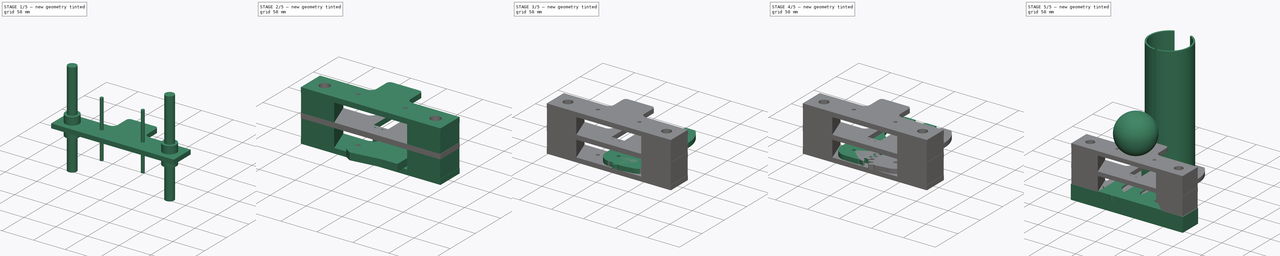
[diagram: build sequence overview — one tinted view per stage of 5, left to right]
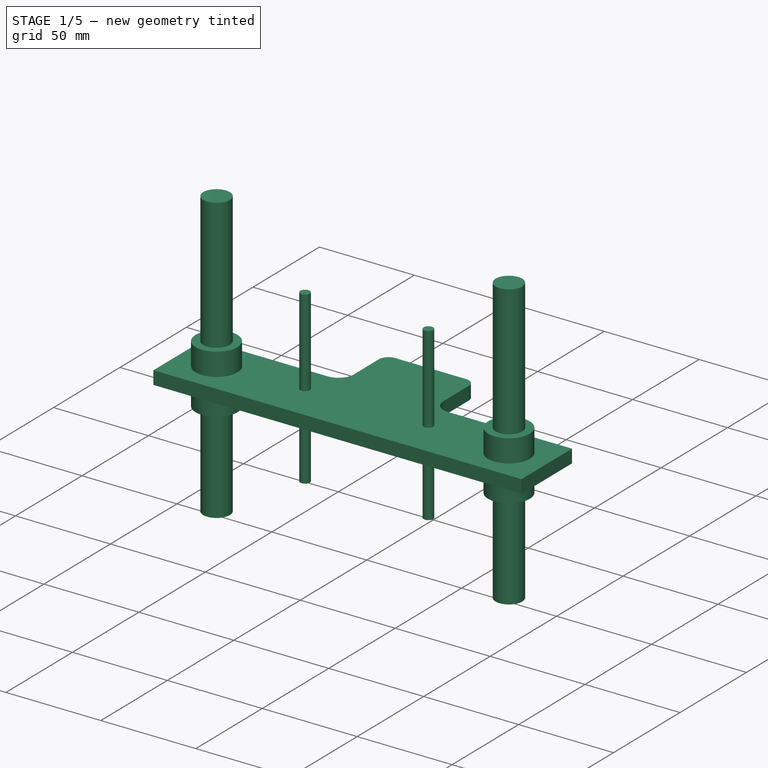
[diagram: stage 1 of 5 — iso view after this stage's code; geometry added in this stage tinted green]
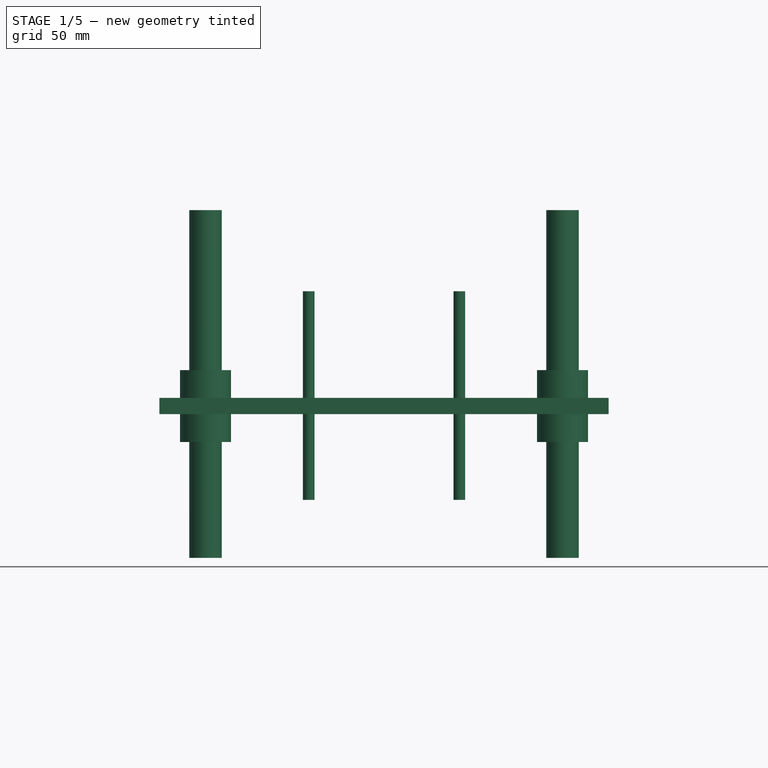
[diagram: stage 1 of 5 — front view after this stage's code; geometry added in this stage tinted green]
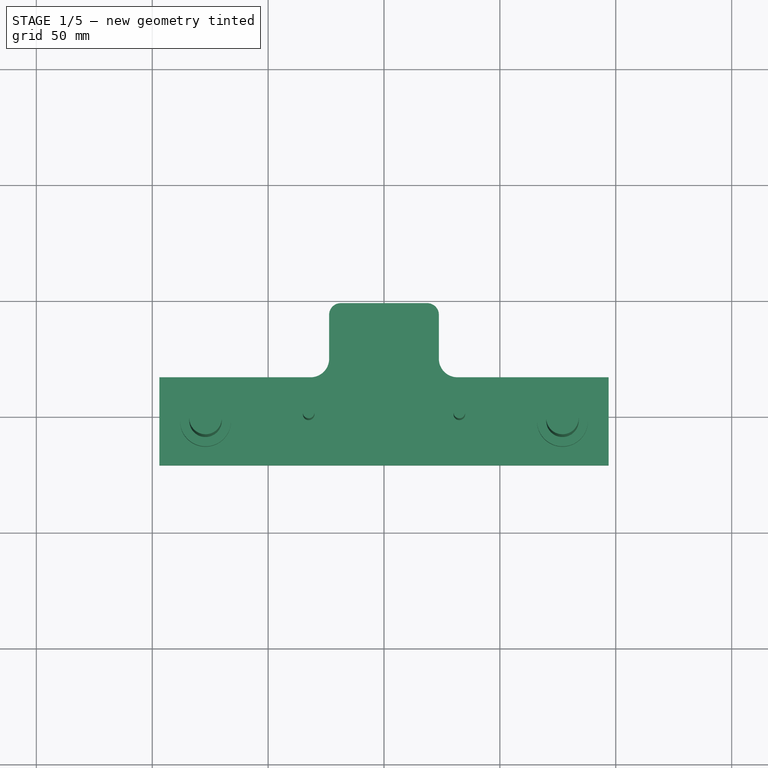
[diagram: stage 1 of 5 — top view after this stage's code; geometry added in this stage tinted green]
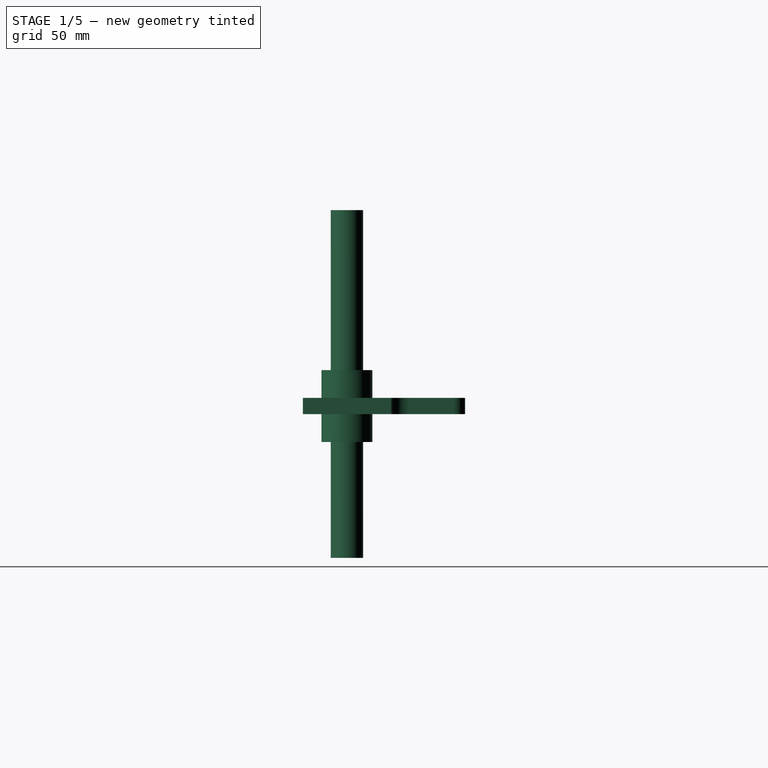
[diagram: stage 1 of 5 — right view after this stage's code; geometry added in this stage tinted green]
FCSTD DOCUMENT  (FreeCAD 0.15R4669 (Git))
Label: gear15_72mm
License: All rights reserved
LicenseURL: http://en.wikipedia.org/wiki/All_rights_reserved
objects: Part::FeaturePython×15, Part::Cut×12, Sketcher::SketchObject×11, PartDesign::Pad×10, Part::Feature×10, App::DocumentObjectGroup×9, Part::Cylinder×6, Part::MultiFuse×6, Part::Mirroring×4, Part::Revolution×2, Part::Part2DObjectPython×1, Part::Compound×1, Part::Sphere×1
note: 89 computed .brp shape members not serialized (recipe doc carries the construction recipe); baked Part::Feature solids carry a one-line shape summary decoded from their .brp

FEATURE [Part::Feature] Pad008  label="servo001"
  Placement = pos=(0,18,26) rot=(0,1,0;3.14159rad)
  shape: bbox 20 x 56 x 40 mm, 20 faces (baked)
FEATURE [Part::Feature] Pad009  label="servo002"
  Placement = pos=(0,18,26) rot=(0.707107,0.707107,0;3.14159rad)
  shape: bbox 20 x 56 x 40 mm, 20 faces (baked)
FEATURE [Sketcher::SketchObject] Sketch  label="base_servo"
  Placement = pos=(0,0,25) rot=(0,0,1;0rad)
  sketch-geometry (14):
    g0: LineSegment StartX=96.9367 StartY=16 StartZ=0 EndX=96.9367 EndY=-22 EndZ=0
    g1: LineSegment StartX=96.9367 StartY=-22 StartZ=0 EndX=-96.9367 EndY=-22 EndZ=0
    g2: LineSegment StartX=-96.9367 StartY=-22 StartZ=0 EndX=-96.9367 EndY=16 EndZ=0
    g3: LineSegment StartX=-18.6686 StartY=47.9833 StartZ=0 EndX=18.6686 EndY=47.9833 EndZ=0
    g4: LineSegment StartX=23.6686 StartY=42.9833 StartZ=0 EndX=23.6686 EndY=24 EndZ=0
    g5: LineSegment StartX=31.6686 StartY=16 StartZ=0 EndX=96.9367 EndY=16 EndZ=0
    g6: LineSegment StartX=-96.9367 StartY=16 StartZ=0 EndX=-31.6686 EndY=16 EndZ=0
    g7: LineSegment StartX=-23.6686 StartY=24 StartZ=0 EndX=-23.6686 EndY=42.9833 EndZ=0
    g8: ArcOfCircle CenterX=-18.6686 CenterY=42.9833 CenterZ=0 NormalX=0 NormalY=0 NormalZ=1 Radius=5 StartAngle=1.5708 EndAngle=3.14159
    g9: ArcOfCircle CenterX=-31.6686 CenterY=24 CenterZ=0 NormalX=0 NormalY=0 NormalZ=1 Radius=8 StartAngle=4.71239 EndAngle=6.28319
    g10: ArcOfCircle CenterX=18.6686 CenterY=42.9833 CenterZ=0 NormalX=0 NormalY=0 NormalZ=1 Radius=5 StartAngle=0 EndAngle=1.5708
    g11: ArcOfCircle CenterX=31.6686 CenterY=24 CenterZ=0 NormalX=0 NormalY=0 NormalZ=1 Radius=8 StartAngle=3.14159 EndAngle=4.71239
    g12: GeomPoint [constr] X=-62.178 Y=16 Z=0
    g13: GeomPoint [constr] X=58.6541 Y=16 Z=0
  constraints (28):
    c: Coincident(g0,g1)
    c: Coincident(g1,g2)
    c: Horizontal(g1)
    c: Vertical(g0)
    c: Vertical(g2)
    c: Symmetric(g0,g2,g-2)
    c: Coincident(g5,g0)
    c: Coincident(g2,g6)
    c: Vertical(g7)
    c: Horizontal(g6)
    c: DistanceY(g2,g1) = -38
    c: Tangent(g3,g8) = 1.5708
    c: Tangent(g7,g8) = 1.5708
    c: Tangent(g7,g9) = -1.5708
    c: Tangent(g6,g9) = -1.5708
    c: Tangent(g3,g10) = 1.5708
    c: Tangent(g4,g10) = 1.5708
    c: Tangent(g4,g11) = -1.5708
    c: Tangent(g5,g11) = -1.5708
    c: Radius(g8) = 5
    c: Symmetric(g3,g3,g-2)
    c: Symmetric(g6,g5,g-2)
    c: DistanceY(g-1,g2) = 16
    c: Equal(g8,g10)
    c: Radius(g9) = 8
    c: Equal(g9,g11)
    c: PointOnObject(g12,g6)
    c: PointOnObject(g13,g5)
FEATURE [Part::Feature] Cut005001  label="pince_g_servo open"
  Placement = pos=(-1.95999,11.1157,0) rot=(0,0,1;0.349066rad)
  shape: bbox 83.6 x 137 x 7 mm, 56 faces (baked)
FEATURE [Part::Feature] Cut006001  label="pince_d_servo open"
  Placement = pos=(0.710203,6.75713,0) rot=(0,0,-1;0.20944rad)
  shape: bbox 70.94 x 139.9 x 7 mm, 58 faces (baked)
FEATURE [PartDesign::Pad] Pad010  label="base_servo001"
  Length = 7
  Length2 = 100
  Placement = pos=(0,0,25) rot=(0,0,1;0rad)
  Sketch = -> Sketch
  Type = 0
FEATURE [Part::Feature] Cut006003  label="pince_g_servo top"
  Placement = pos=(0,0,64) rot=(0,0,1;0rad)
  shape: bbox 55.07 x 140.6 x 7 mm, 56 faces (baked)
FEATURE [Part::Feature] Cut006004  label="pince_d_servo top"
  Placement = pos=(0,0,64) rot=(0,0,1;0rad)
  shape: bbox 54.83 x 144.6 x 7 mm, 58 faces (baked)
FEATURE [Part::Cylinder] Cylinder003  label="ball_slider"
  Angle = 360
  Height = 31
  Radius = 11
FEATURE [Part::Cylinder] Cylinder004  label="axe"
  Angle = 360
  Height = 150
  Placement = pos=(0,0,-50) rot=(0,0,1;0rad)
  Radius = 7
FEATURE [Part::MultiFuse] Fusion003  label="ball slider"
  Shapes = -> [Cylinder003,Cylinder004]
FEATURE [App::DocumentObjectGroup] Groupe007  label="glissiere"
  Group = -> [Fusion003]
FEATURE [Part::FeaturePython] Clone017  label="Clone of ball slider"  # Draft clone (typed FeaturePython)
  Objects = -> [Fusion003]
  Placement = pos=(-77,-3,13) rot=(0,0,1;0rad)
  Scale = (1,1,1)
FEATURE [Part::Mirroring] Part__Mirroring002  label="Clone of ball slider (Mirror #3)"
  Base = (0,0,0)
  Normal = (1,0,0)
  Source = -> Clone017
FEATURE [Part::MultiFuse] Fusion004  label="ball_sliders"
  Shapes = -> [Clone017,Part__Mirroring002]
FEATURE [Part::Cylinder] Cylinder005  label="vis_d"
  Angle = 360
  Height = 90
  Placement = pos=(32.5,0,-12) rot=(0,0,1;0rad)
  Radius = 2.5
FEATURE [Part::Mirroring] Part__Mirroring003  label="vis_d (Mirror #4)"
  Base = (0,0,0)
  Normal = (1,0,0)
  Source = -> Cylinder005
FEATURE [Part::MultiFuse] Fusion005  label="vis"
  Shapes = -> [Part__Mirroring003,Cylinder005]
FEATURE [Part::MultiFuse] Fusion006  label="vis sliders"
  Shapes = -> [Fusion004,Fusion005]
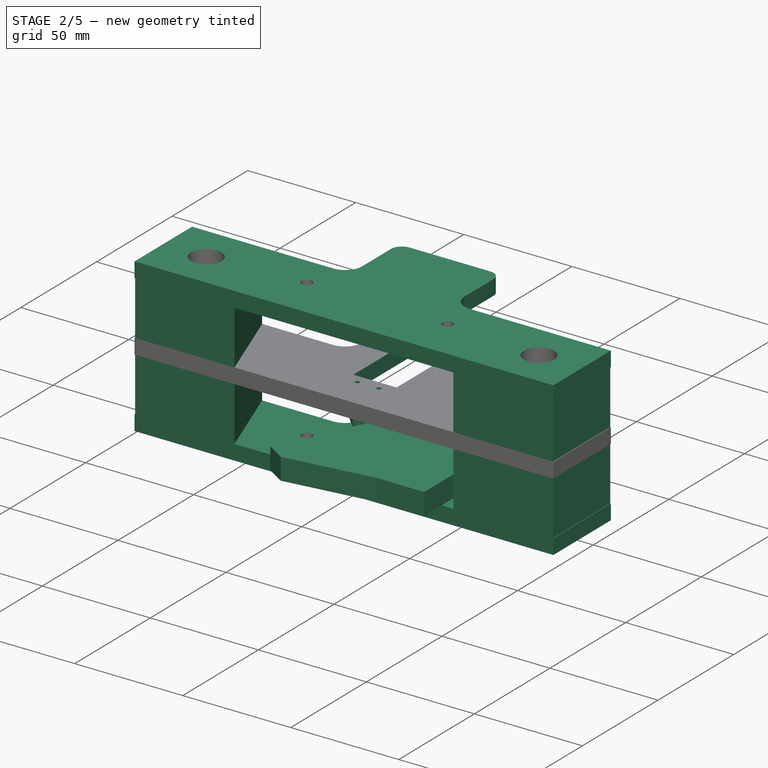
[diagram: stage 2 of 5 — iso view after this stage's code; geometry added in this stage tinted green]
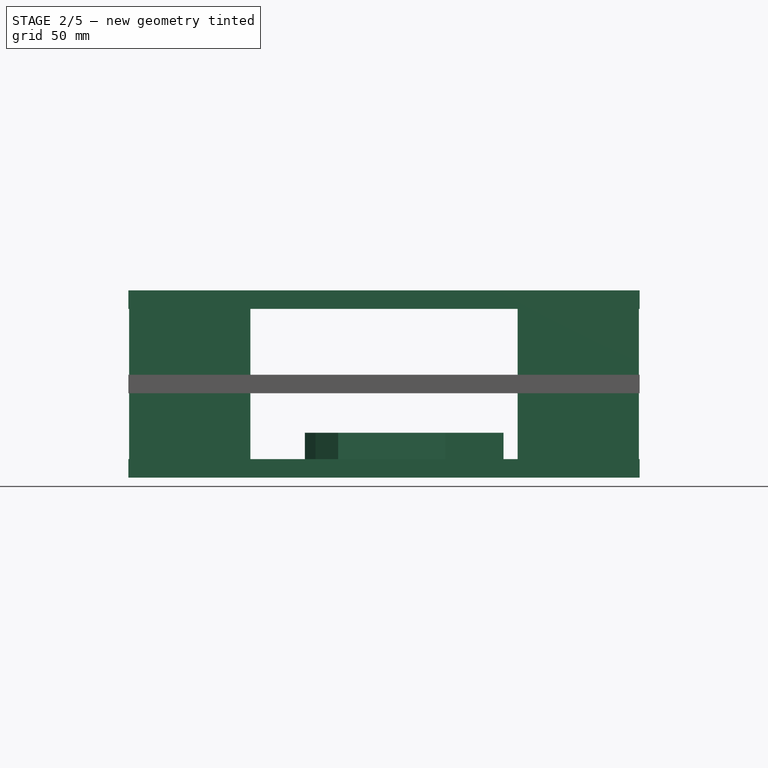
[diagram: stage 2 of 5 — front view after this stage's code; geometry added in this stage tinted green]
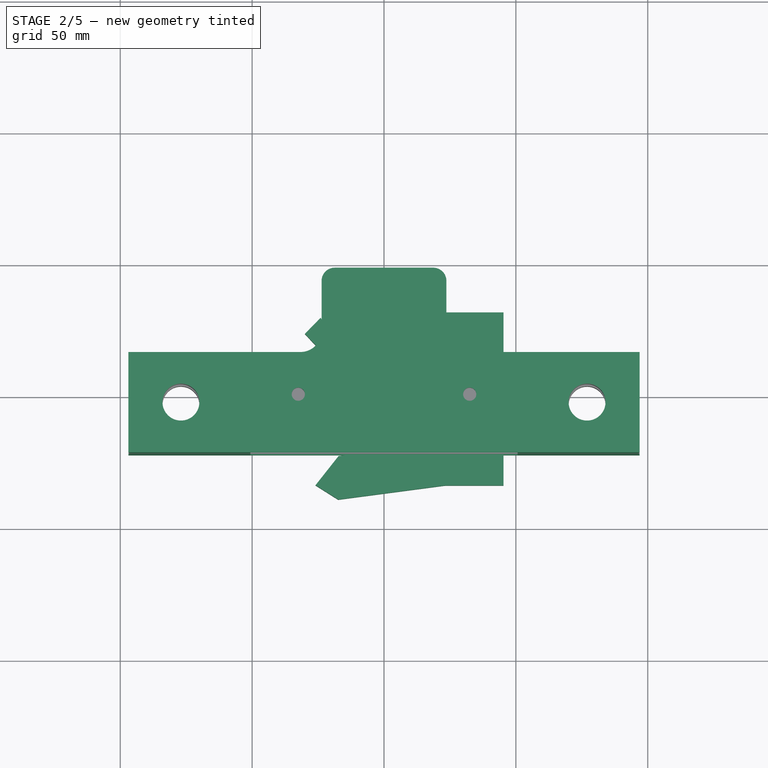
[diagram: stage 2 of 5 — top view after this stage's code; geometry added in this stage tinted green]
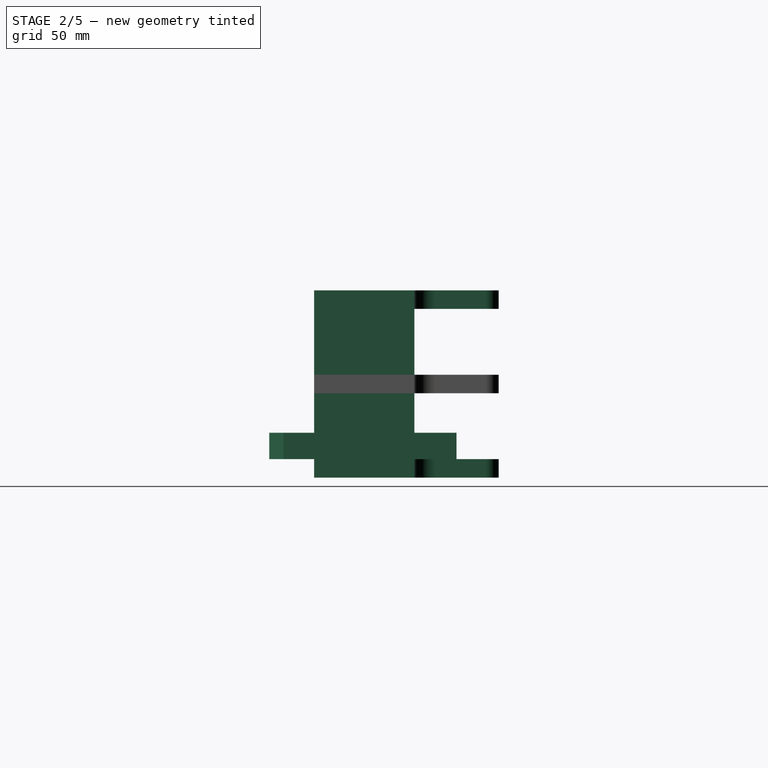
[diagram: stage 2 of 5 — right view after this stage's code; geometry added in this stage tinted green]
FEATURE [Part::Feature] Revolve001  label="plot001"
  Placement = pos=(0,80,-30) rot=(0,0,1;0rad)
  shape: bbox 60 x 60 x 70 mm, 5 faces, 0 solids (baked)
FEATURE [App::DocumentObjectGroup] Groupe003
  Group = -> [Revolve,Sphere]
FEATURE [Part::Feature] Sphere001  label="tennis001"
  Placement = pos=(0,80,180) rot=(0,0,1;0rad)
  shape: bbox 65 x 65 x 65 mm, 1 faces (baked)
FEATURE [Sketcher::SketchObject] Sketch006  label="4plot"
  Placement = pos=(0,0,0) rot=(1,0,0;1.5708rad)
  sketch-geometry (18):
    g0: LineSegment StartX=0 StartY=0 StartZ=0 EndX=30 EndY=0 EndZ=0
    g1: LineSegment StartX=30 StartY=280 StartZ=0 EndX=17.5 EndY=280 EndZ=0
    g2: LineSegment StartX=17.5 StartY=280 StartZ=0 EndX=17.5 EndY=272 EndZ=0
    g3: LineSegment StartX=17.5 StartY=272 StartZ=0 EndX=0 EndY=265.057 EndZ=0
    g4: LineSegment StartX=0 StartY=265.057 StartZ=0 EndX=0 EndY=0 EndZ=0
    g5: LineSegment StartX=30 StartY=0 StartZ=0 EndX=30 EndY=69 EndZ=0
    g6: LineSegment StartX=30 StartY=69 StartZ=0 EndX=10 EndY=69 EndZ=0
    g7: LineSegment StartX=10 StartY=69 StartZ=0 EndX=10 EndY=70 EndZ=0
    g8: LineSegment StartX=10 StartY=70 StartZ=0 EndX=30 EndY=70 EndZ=0
    g9: LineSegment StartX=30 StartY=70 StartZ=0 EndX=30 EndY=139 EndZ=0
    g10: LineSegment StartX=30 StartY=139 StartZ=0 EndX=7.41971 EndY=139 EndZ=0
    g11: LineSegment StartX=7.41971 StartY=139 StartZ=0 EndX=7.41971 EndY=140 EndZ=0
    g12: LineSegment StartX=7.41971 StartY=140 StartZ=0 EndX=30 EndY=140 EndZ=0
    g13: LineSegment StartX=30 StartY=140 StartZ=0 EndX=30 EndY=209 EndZ=0
    g14: LineSegment StartX=30 StartY=209 StartZ=0 EndX=20.1134 EndY=209 EndZ=0
    g15: LineSegment StartX=20.1134 StartY=209 StartZ=0 EndX=20.1134 EndY=210 EndZ=0
    g16: LineSegment StartX=20.1134 StartY=210 StartZ=0 EndX=30 EndY=210 EndZ=0
    g17: LineSegment StartX=30 StartY=210 StartZ=0 EndX=30 EndY=280 EndZ=0
  constraints (44):
    c: Coincident(g-1,g0)
    c: Horizontal(g0)
    c: Horizontal(g1)
    c: Coincident(g1,g2)
    c: Vertical(g2)
    c: Coincident(g2,g3)
    c: Coincident(g3,g4)
    c: Coincident(g4,g0)
    c: Vertical(g4)
    c: DistanceY(g2) = -8
    c: DistanceX(g0) = 30
    c: DistanceX(g-1,g1) = 17.5
    c: Coincident(g0,g5)
    c: Vertical(g5)
    c: Coincident(g5,g6)
    c: Horizontal(g6)
    c: Coincident(g6,g7)
    c: Vertical(g7)
    c: Coincident(g7,g8)
    c: Horizontal(g8)
    c: Coincident(g8,g9)
    c: Vertical(g9)
    c: Coincident(g9,g10)
    c: Horizontal(g10)
    c: Coincident(g10,g11)
    c: Vertical(g11)
    c: Coincident(g11,g12)
    c: Horizontal(g12)
    c: Coincident(g12,g13)
    c: Vertical(g13)
    c: Coincident(g13,g14)
    c: Horizontal(g14)
    c: Coincident(g14,g15)
    c: Coincident(g15,g16)
    c: Coincident(g16,g17)
    c: Coincident(g17,g1)
    c: Vertical(g17)
    c: Vertical(g15)
    c: DistanceY(g5) = 69
    c: DistanceX(g6) = -20
    c: Equal(g5,g9)
    c: Equal(g5,g13)
    c: DistanceY(g1,g0) = -280
    c: Horizontal(g16)
FEATURE [Part::Revolution] Revolve002  label="4plot001"
  Angle = 360
  Axis = (0,0,1)
  Base = (0,0,0)
  Solid = false
  Source = -> Sketch006
FEATURE [Part::Feature] Revolve003  label="4plot002"
  Placement = pos=(0,80,-90) rot=(0,0,1;0rad)
  shape: bbox 60 x 60 x 280 mm, 17 faces, 0 solids (baked)
FEATURE [App::DocumentObjectGroup] Groupe002  label="element jeu"
  Group = -> [Revolve001,Groupe003,Sphere001,Revolve002,Revolve003]
FEATURE [Sketcher::SketchObject] Sketch007  label="gears cutter00d"
  sketch-geometry (13):
    g0: LineSegment StartX=20 StartY=31.9589 StartZ=0 EndX=45.3042 EndY=31.9589 EndZ=0
    g1: LineSegment StartX=45.3042 StartY=31.9589 StartZ=0 EndX=45.3042 EndY=-33.6521 EndZ=0
    g2: LineSegment StartX=45.3042 StartY=-33.6521 StartZ=0 EndX=23.2132 EndY=-33.6521 EndZ=0
    g3: LineSegment StartX=-17.3724 StartY=-39.0124 StartZ=0 EndX=23.2132 EndY=-33.6521 EndZ=0
    g4: LineSegment StartX=20 StartY=0 StartZ=0 EndX=20 EndY=31.9589 EndZ=0
    g5: LineSegment StartX=6.5359e-06 StartY=-20 StartZ=0 EndX=-17.2369 EndY=-22.5073 EndZ=0
    g6: ArcOfCircle CenterX=0 CenterY=0 CenterZ=0 NormalX=0 NormalY=0 NormalZ=1 Radius=20 StartAngle=4.71239 EndAngle=6.28319
    g7: LineSegment StartX=-17.2369 StartY=-22.5073 StartZ=0 EndX=-25.9844 EndY=-33.5782 EndZ=0
    g8: LineSegment StartX=-25.9844 StartY=-33.5782 StartZ=0 EndX=-17.3724 EndY=-39.0124 EndZ=0
    g9: LineSegment StartX=-20 StartY=22.1857 StartZ=0 EndX=-22.9786 EndY=16.3812 EndZ=0
    g10: LineSegment StartX=-22.9786 StartY=16.3812 StartZ=0 EndX=-30 EndY=23.8199 EndZ=0
    g11: LineSegment StartX=-30 StartY=23.8199 StartZ=0 EndX=-24.0017 EndY=30 EndZ=0
    g12: LineSegment StartX=-20 StartY=22.1857 StartZ=0 EndX=-24.0017 EndY=30 EndZ=0
  constraints (18):
    c: Coincident(g0,g1)
    c: Coincident(g1,g2)
    c: Horizontal(g0)
    c: Horizontal(g2)
    c: Vertical(g1)
    c: Coincident(g3,g2)
    c: Coincident(g4,g0)
    c: Vertical(g4)
    c: Coincident(g6,g-1)
    c: Coincident(g6,g4)
    c: Coincident(g6,g5)
    c: Coincident(g7,g5)
    c: Coincident(g8,g7)
    c: Coincident(g8,g3)
    c: Coincident(g9,g10)
    c: Coincident(g10,g11)
    c: Coincident(g12,g9)
    c: Coincident(g12,g11)
FEATURE [PartDesign::Pad] Pad005  label="gearcutter_d"
  Length = 10
  Length2 = 100
  Sketch = -> Sketch007
  Type = 0
FEATURE [Part::Feature] Fusion002  label="servo003"
  Placement = pos=(0,18,25) rot=(0.707107,0.707107,0;3.14159rad)
  shape: bbox 20 x 56 x 40 mm, 32 faces, 5 solids (baked)
FEATURE [Part::Cut] Cut006002  label="base_servo002"
  Base = -> Pad010
  Tool = -> Fusion002
FEATURE [Sketcher::SketchObject] Sketch010
  sketch-geometry (8):
    g0: LineSegment StartX=-96.6549 StartY=16 StartZ=0 EndX=-64.4858 EndY=16 EndZ=0
    g1: LineSegment StartX=-64.4858 StartY=16 StartZ=0 EndX=-50.6549 EndY=-22 EndZ=0
    g2: LineSegment StartX=-50.6549 StartY=-22 StartZ=0 EndX=-96.6549 EndY=-22 EndZ=0
    g3: LineSegment StartX=-96.6549 StartY=-22 StartZ=0 EndX=-96.6549 EndY=16 EndZ=0
    g4: LineSegment StartX=64.4858 StartY=16 StartZ=0 EndX=96.6549 EndY=16 EndZ=0
    g5: LineSegment StartX=96.6549 StartY=16 StartZ=0 EndX=96.6549 EndY=-22 EndZ=0
    g6: LineSegment StartX=96.6549 StartY=-22 StartZ=0 EndX=50.6549 EndY=-22 EndZ=0
    g7: LineSegment StartX=50.6549 StartY=-22 StartZ=0 EndX=64.4858 EndY=16 EndZ=0
  constraints (20):
    c: Coincident(g0,g1)
    c: Coincident(g1,g2)
    c: Coincident(g2,g3)
    c: Coincident(g3,g0)
    c: Horizontal(g0)
    c: Horizontal(g2)
    c: Vertical(g3)
    c: DistanceY(g0,g2) = -38
    c: Coincident(g4,g5)
    c: Coincident(g5,g6)
    c: Coincident(g6,g7)
    c: Coincident(g7,g4)
    c: Horizontal(g4)
    c: Horizontal(g6)
    c: Vertical(g5)
    c: Symmetric(g1,g6,g-2)
    c: Symmetric(g0,g4,g-2)
    c: Symmetric(g5,g2,g-2)
    c: DistanceX(g2,g1) = 46
    c: Angle(g1,g2) = 1.22173
FEATURE [PartDesign::Pad] Pad011  label="border"
  Length = 25
  Length2 = 100
  Sketch = -> Sketch010
  Type = 0
FEATURE [Part::FeaturePython] Clone014  label="Clone of border"  # Draft clone (typed FeaturePython)
  Objects = -> [Pad011]
  Placement = pos=(0,0,32) rot=(0,0,1;0rad)
  Scale = (1,1,1)
FEATURE [Part::FeaturePython] Clone015  label="base_servo top"  # Draft clone (typed FeaturePython)
  Objects = -> [Pad010]
  Placement = pos=(0,0,57) rot=(0,0,1;0rad)
  Scale = (1,1,1)
FEATURE [Part::FeaturePython] Clone016  label="base_servo bot"  # Draft clone (typed FeaturePython)
  Objects = -> [Pad010]
  Placement = pos=(0,0,-7) rot=(0,0,1;0rad)
  Scale = (1,1,1)
FEATURE [Part::Cut] Cut006005
  Base = -> Pad011
  Tool = -> Fusion004
FEATURE [Part::Cut] Cut006008
  Base = -> Clone014
  Tool = -> Fusion004
FEATURE [Part::Cut] Cut006006
  Base = -> Clone016
  Tool = -> Fusion006
FEATURE [Part::Cut] Cut006007
  Base = -> Clone015
  Tool = -> Fusion006
FEATURE [Part::Cut] Cut006009
  Base = -> Cut006002
  Tool = -> Fusion006
FEATURE [App::DocumentObjectGroup] Groupe004  label="servo"
  Group = -> [Pad006,Pad007,Clone,Pad008,Cut006009]
FEATURE [App::DocumentObjectGroup] Groupe008  label="axes"
  Group = -> [Fusion006]
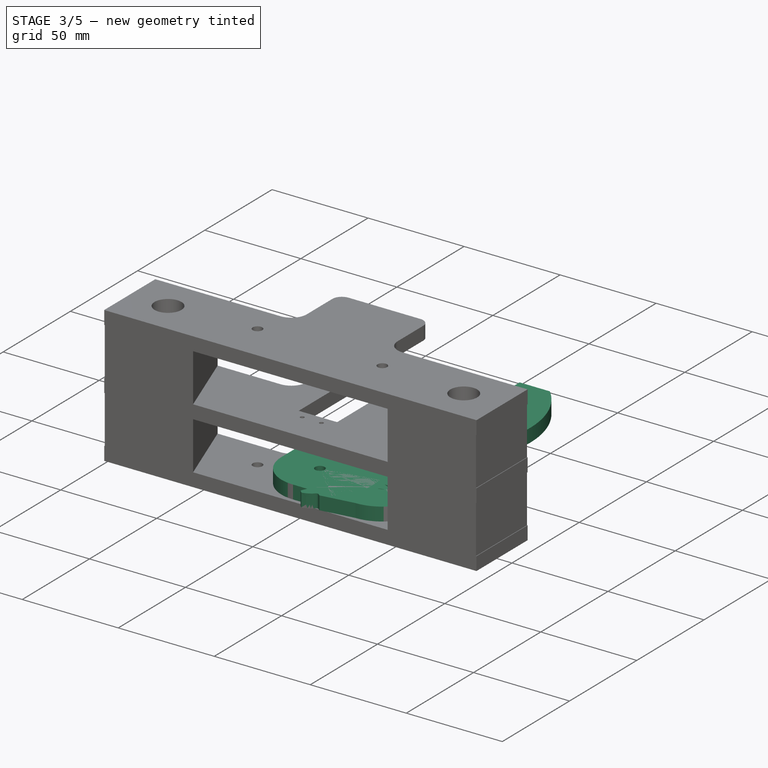
[diagram: stage 3 of 5 — iso view after this stage's code; geometry added in this stage tinted green]
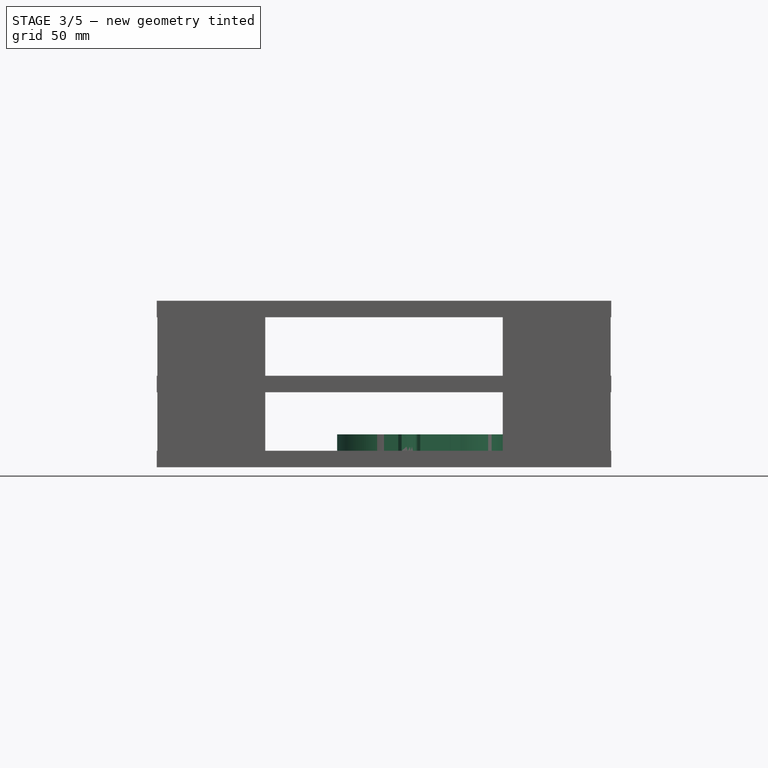
[diagram: stage 3 of 5 — front view after this stage's code; geometry added in this stage tinted green]
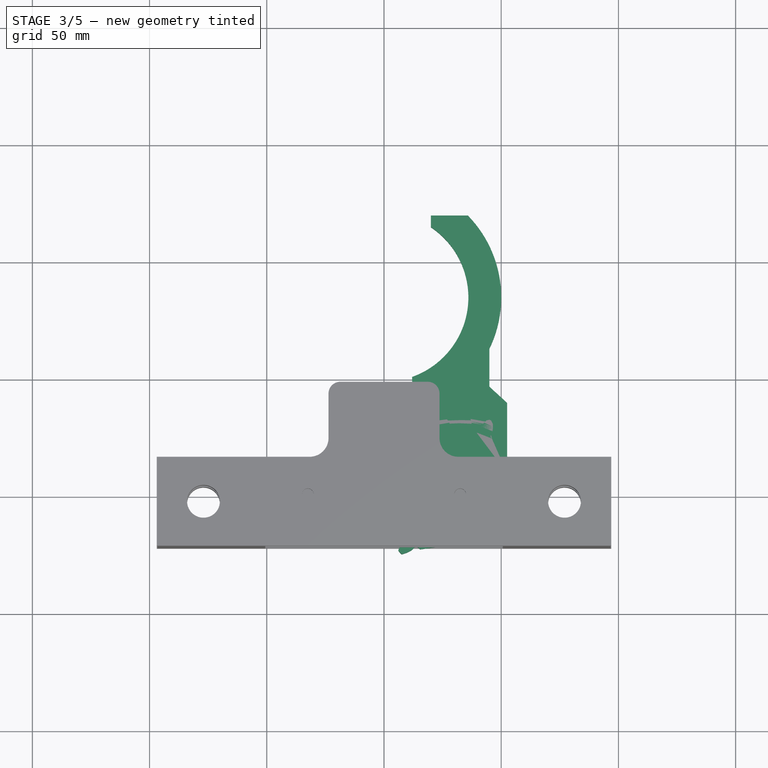
[diagram: stage 3 of 5 — top view after this stage's code; geometry added in this stage tinted green]
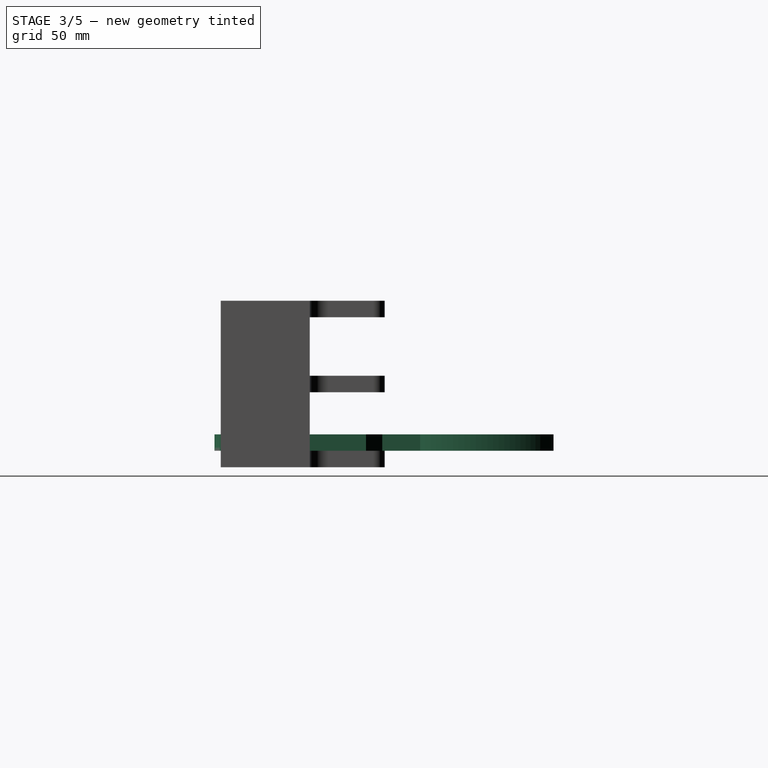
[diagram: stage 3 of 5 — right view after this stage's code; geometry added in this stage tinted green]
FEATURE [Part::Part2DObjectPython] InvoluteGear  # Draft 2D object (typed FeaturePython)
  ExternalGear = true
  HighPrecision = false
  Modules = 3.05
  NumberOfTeeth = 21
  PressureAngle = 20
FEATURE [PartDesign::Pad] Pad
  Length = 7
  Length2 = 100
  Sketch = -> InvoluteGear
  Type = 0
FEATURE [Sketcher::SketchObject] Sketch001
  sketch-geometry (9):
    g0: LineSegment StartX=20.5228 StartY=10 StartZ=0 EndX=-20 EndY=10 EndZ=0
    g1: LineSegment StartX=12.5 StartY=119.933 StartZ=0 EndX=-3.27244 EndY=119.933 EndZ=0
    g2: LineSegment StartX=-20 StartY=10 StartZ=0 EndX=-20 EndY=40 EndZ=0
    g3: LineSegment StartX=-20 StartY=40 StartZ=0 EndX=-12.4418 EndY=46.9071 EndZ=0
    g4: LineSegment StartX=-12.4418 StartY=63.0857 StartZ=0 EndX=-12.4418 EndY=46.9071 EndZ=0
    g5: ArcOfCircle CenterX=32.5 CenterY=85 CenterZ=0 NormalX=0 NormalY=0 NormalZ=1 Radius=36 StartAngle=2.15983 EndAngle=4.37322
    g6: LineSegment StartX=12.5 StartY=119.933 StartZ=0 EndX=12.5 EndY=114.933 EndZ=0
    g7: LineSegment StartX=20.5228 StartY=51.0508 StartZ=0 EndX=20.5228 EndY=10 EndZ=0
    g8: ArcOfCircle CenterX=32.5 CenterY=85 CenterZ=0 NormalX=0 NormalY=0 NormalZ=1 Radius=50 StartAngle=2.36806 EndAngle=3.59528
  constraints (22):
    c: Coincident(g2,g0)
    c: Vertical(g2)
    c: Coincident(g3,g2)
    c: Coincident(g4,g3)
    c: Vertical(g4)
    c: DistanceX(g-1,g5) = 32.5
    c: Coincident(g6,g1)
    c: Coincident(g6,g5)
    c: Vertical(g6)
    c: Coincident(g7,g5)
    c: Coincident(g7,g0)
    c: Vertical(g7)
    c: DistanceY(g-1,g5) = 85
    c: DistanceY(g1,g5) = -5
    c: Coincident(g8,g5)
    c: Coincident(g8,g1)
    c: PointOnObject(g8,g4)
    c: Coincident(g8,g4)
    c: Radius(g5) = 36
    c: Radius(g8) = 50
    c: Horizontal(g1)
    c: DistanceX(g5,g5) = -20
FEATURE [PartDesign::Pad] Pad001
  Length = 7
  Length2 = 100
  Sketch = -> Sketch001
  Type = 0
FEATURE [Part::FeaturePython] Clone003  label="Clone of Pad002"  # Draft clone (typed FeaturePython)
  Objects = -> [Pad001]
  Scale = (1,1,1)
FEATURE [Part::Mirroring] Part__Mirroring  label="Clone of Pad002 (Mirror #1)"
  Base = (0,0,0)
  Normal = (1,0,0)
  Source = -> Clone003
FEATURE [Part::Cylinder] Cylinder001  label="hole"
  Angle = 360
  Height = 30
  Placement = pos=(0,0,-10) rot=(0,0,1;0rad)
  Radius = 2.5
FEATURE [Part::Cut] Cut  label="gear"
  Base = -> Pad
  Tool = -> Cylinder001
FEATURE [Sketcher::SketchObject] Sketch002  label="gears cutter_g"
  sketch-geometry (11):
    g0: LineSegment StartX=-20 StartY=35 StartZ=0 EndX=-38.7726 EndY=35 EndZ=0
    g1: LineSegment StartX=-38.7726 StartY=35 StartZ=0 EndX=-38.7726 EndY=-38.2128 EndZ=0
    g2: LineSegment StartX=-38.7726 StartY=-38.2128 StartZ=0 EndX=39.419 EndY=-38.2128 EndZ=0
    g3: LineSegment StartX=-20 StartY=35 StartZ=0 EndX=-20 EndY=0 EndZ=0
    g4: ArcOfCircle CenterX=0 CenterY=0 CenterZ=0 NormalX=0 NormalY=0 NormalZ=1 Radius=20 StartAngle=3.14159 EndAngle=4.71239
    g5: LineSegment StartX=0 StartY=-20 StartZ=0 EndX=20.0445 EndY=-20.016 EndZ=0
    g6: LineSegment StartX=20.0445 StartY=-20.016 StartZ=0 EndX=39.419 EndY=-38.2128 EndZ=0
    g7: LineSegment StartX=20 StartY=30 StartZ=0 EndX=23.6759 EndY=30 EndZ=0
    g8: LineSegment StartX=23.6759 StartY=30 StartZ=0 EndX=23.6759 EndY=20.1799 EndZ=0
    g9: LineSegment StartX=23.6759 StartY=20.1799 StartZ=0 EndX=20 EndY=20.1799 EndZ=0
    g10: LineSegment StartX=20 StartY=20.1799 StartZ=0 EndX=20 EndY=30 EndZ=0
  constraints (22):
    c: Coincident(g0,g1)
    c: Coincident(g1,g2)
    c: Horizontal(g0)
    c: Horizontal(g2)
    c: Vertical(g1)
    c: PointOnObject(g4,g-2)
    c: Coincident(g3,g0)
    c: Vertical(g3)
    c: Coincident(g4,g-1)
    c: Coincident(g4,g3)
    c: Coincident(g5,g4)
    c: Coincident(g6,g5)
    c: Coincident(g6,g2)
    c: Radius(g4) = 20
    c: Coincident(g7,g8)
    c: Coincident(g8,g9)
    c: Coincident(g9,g10)
    c: Coincident(g10,g7)
    c: Horizontal(g7)
    c: Horizontal(g9)
    c: Vertical(g8)
    c: Vertical(g10)
FEATURE [PartDesign::Pad] Pad002  label="gearcutter_g"
  Length = 10
  Length2 = 100
  Sketch = -> Sketch002
  Type = 0
FEATURE [Part::Cut] Cut001
  Base = -> Cut
  Tool = -> Pad002
FEATURE [Part::Cut] Cut002
  Base = -> Cut
  Tool = -> Pad005
FEATURE [Part::MultiFuse] Fusion001  label="pince_d"
  Shapes = -> [Part__Mirroring,Cut002]
FEATURE [Part::FeaturePython] Clone013  label="Clone of pince_d"  # Draft clone (typed FeaturePython)
  Objects = -> [Fusion001]
  Placement = pos=(32.5,0,0) rot=(0,0,1;0rad)
  Scale = (1,1,1)
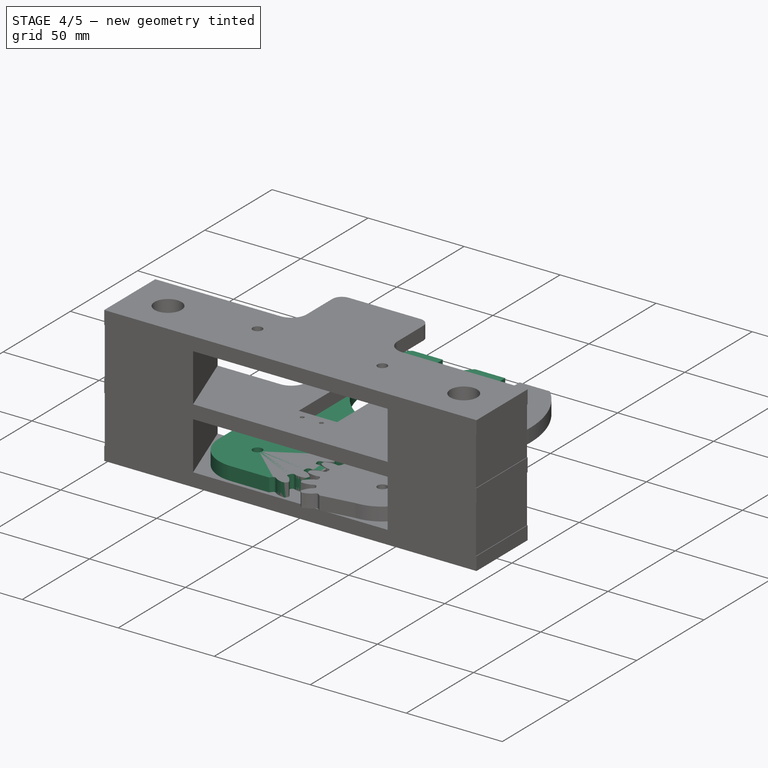
[diagram: stage 4 of 5 — iso view after this stage's code; geometry added in this stage tinted green]
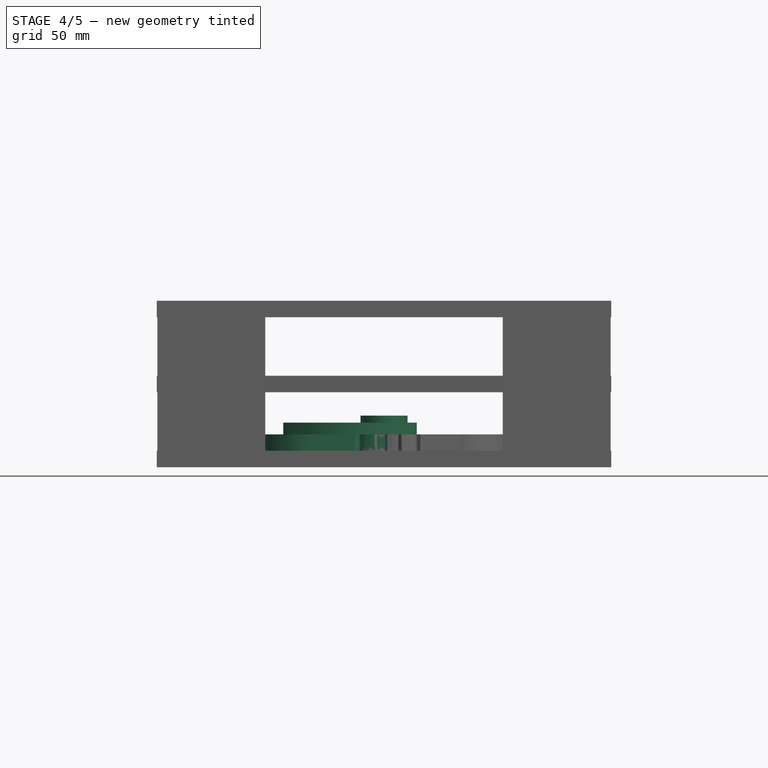
[diagram: stage 4 of 5 — front view after this stage's code; geometry added in this stage tinted green]
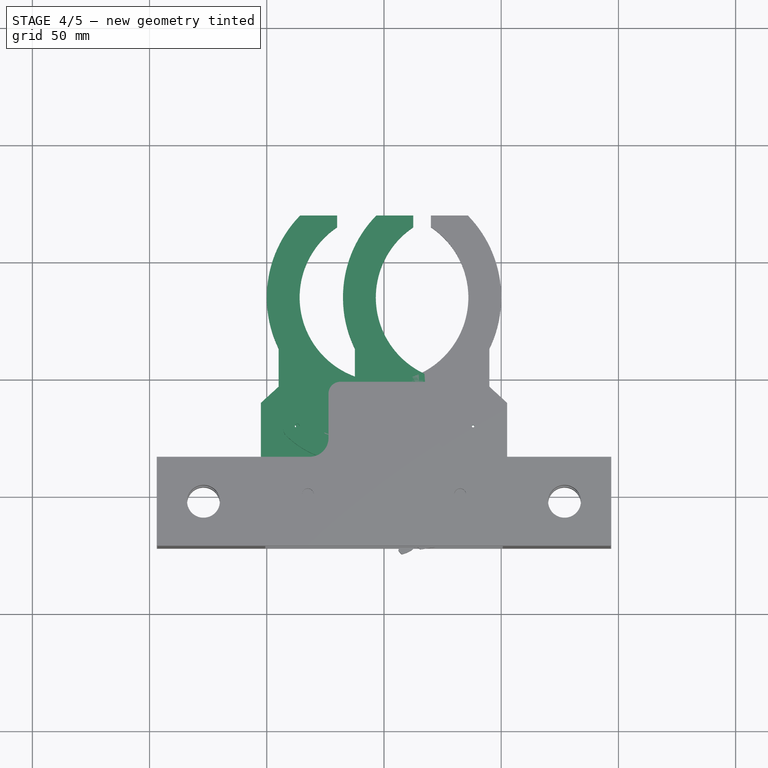
[diagram: stage 4 of 5 — top view after this stage's code; geometry added in this stage tinted green]
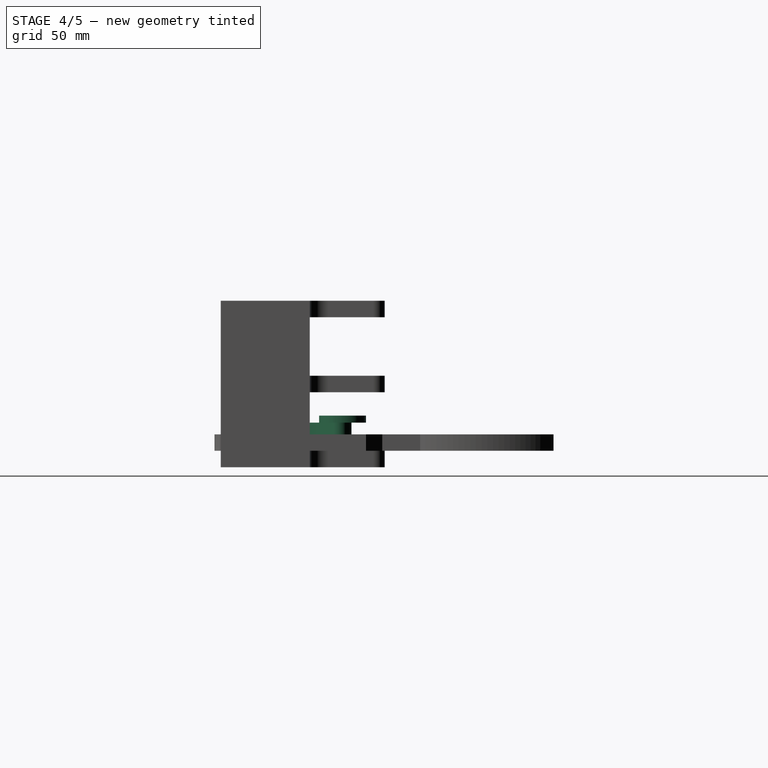
[diagram: stage 4 of 5 — right view after this stage's code; geometry added in this stage tinted green]
FEATURE [Part::FeaturePython] Clone002  label="Clone of Pad001"  # Draft clone (typed FeaturePython)
  Objects = -> [Pad001]
  Scale = (1,1,1)
FEATURE [Part::MultiFuse] Fusion  label="pince_g"
  Shapes = -> [Clone002,Cut001]
FEATURE [Sketcher::SketchObject] Sketch008  label="rond"
  Placement = pos=(0,0,12) rot=(0,0,1;0rad)
  sketch-geometry (3):
    g0: Circle CenterX=0 CenterY=30 CenterZ=0 NormalX=0 NormalY=0 NormalZ=1 Radius=10
    g1: Circle CenterX=-8 CenterY=30 CenterZ=0 NormalX=0 NormalY=0 NormalZ=1 Radius=1
    g2: Circle CenterX=8 CenterY=30 CenterZ=0 NormalX=0 NormalY=0 NormalZ=1 Radius=1
  constraints (6):
    c: PointOnObject(g0,g-2)
    c: Radius(g0) = 10
    c: DistanceX(g1) = -8
    c: Symmetric(g1,g2,g0)
    c: Equal(g1,g2)
    c: Radius(g1) = 1
FEATURE [Sketcher::SketchObject] Sketch009  label="arc"
  Placement = pos=(0,0,7) rot=(0,0,1;0rad)
  sketch-geometry (10):
    g0: ArcOfCircle CenterX=14.5 CenterY=6.45859 CenterZ=0 NormalX=0 NormalY=0 NormalZ=1 Radius=28.7645 StartAngle=0.808013 EndAngle=2.33358
    g1: ArcOfCircle CenterX=14.5 CenterY=6.45859 CenterZ=0 NormalX=0 NormalY=0 NormalZ=1 Radius=38.7758 StartAngle=0.788455 EndAngle=2.35314
    g2: Circle CenterX=-8 CenterY=30 CenterZ=0 NormalX=0 NormalY=0 NormalZ=1 Radius=1
    g3: Circle CenterX=37 CenterY=30 CenterZ=0 NormalX=0 NormalY=0 NormalZ=1 Radius=1
    g4: ArcOfCircle CenterX=-8 CenterY=30 CenterZ=0 NormalX=0 NormalY=0 NormalZ=1 Radius=3.8 StartAngle=4.18152 EndAngle=5.47517
    g5: ArcOfCircle CenterX=37 CenterY=30 CenterZ=0 NormalX=0 NormalY=0 NormalZ=1 Radius=3.8 StartAngle=3.94961 EndAngle=5.24326
    g6: ArcOfCircle CenterX=-10.1559 CenterY=31.2657 CenterZ=0 NormalX=0 NormalY=0 NormalZ=1 Radius=3.8 StartAngle=2.35314 EndAngle=4.18152
    g7: LineSegment StartX=-9.92387 StartY=26.723 StartZ=0 EndX=-12.0798 EndY=27.9887 EndZ=0
    g8: ArcOfCircle CenterX=39.1559 CenterY=31.2657 CenterZ=0 NormalX=0 NormalY=0 NormalZ=1 Radius=3.8 StartAngle=5.24326 EndAngle=7.07164
    g9: LineSegment StartX=38.9239 StartY=26.723 StartZ=0 EndX=41.0798 EndY=27.9887 EndZ=0
  constraints (31):
    c: DistanceY(g0,g0) = 0
    c: Coincident(g1,g0)
    c: Radius(g2) = 1
    c: Radius(g3) = 1
    c: Coincident(g4,g2)
    c: Coincident(g4,g0)
    c: DistanceX(g2) = -8
    c: DistanceY(g-1,g2) = 30
    c: Radius(g4) = 3.8
    c: Coincident(g5,g3)
    c: Coincident(g5,g0)
    c: Equal(g4,g5)
    c: Tangent(g0,g4)
    c: Coincident(g6,g1)
    c: Coincident(g7,g4)
    c: Coincident(g7,g6)
    c: Radius(g6) = 3.8
    c: Tangent(g1,g6)
    c: Tangent(g6,g7)
    c: Tangent(g4,g7)
    c: Coincident(g8,g1)
    c: Coincident(g9,g5)
    c: Coincident(g9,g8)
    c: DistanceY(g2,g3) = 0
    c: DistanceX(g2,g3) = 45
    c: Tangent(g5,g9)
    c: Tangent(g8,g9)
    c: Tangent(g1,g8)
    c: DistanceY(g4,g5) = 0
    c: DistanceY(g6,g8) = 0
    c: Distance(g6,g4) = 2.5
FEATURE [PartDesign::Pad] Pad006  label="arc003"
  Length = 5
  Length2 = 100
  Placement = pos=(0,0,7) rot=(0,0,1;0rad)
  Sketch = -> Sketch009
  Type = 0
FEATURE [Part::FeaturePython] Clone  label="arc2"  # Draft clone (typed FeaturePython)
  Objects = -> [Pad006]
  Placement = pos=(0,60,7) rot=(0,0,1;3.14159rad)
  Scale = (1,1,1)
FEATURE [Part::Cylinder] Cylinder002  label="fixation_servo"
  Angle = 360
  Height = 15
  Placement = pos=(38,30,0) rot=(0,0,1;0rad)
  Radius = 0.5
FEATURE [PartDesign::Pad] Pad007  label="rond001"
  Length = 3
  Length2 = 100
  Placement = pos=(0,0,12) rot=(0,0,1;0rad)
  Sketch = -> Sketch008
  Type = 0
FEATURE [Part::Mirroring] Part__Mirroring001  label="fixation_servo (Mirror #2)"
  Base = (0,0,0)
  Normal = (1,0,0)
  Source = -> Cylinder002
FEATURE [Part::Cut] Cut004
  Base = -> Clone002
  Tool = -> Part__Mirroring001
FEATURE [App::DocumentObjectGroup] Groupe005  label="gear001"
  Group = -> [Cut]
FEATURE [App::DocumentObjectGroup] Groupe006  label="gear_clamp"
  Group = -> [Groupe005,Pad001,Pad002,Pad005]
FEATURE [Part::FeaturePython] Clone012  label="Clone of pince_g"  # Draft clone (typed FeaturePython)
  Objects = -> [Fusion]
  Placement = pos=(-32.5,0,0) rot=(0,0,1;0rad)
  Scale = (1,1,1)
FEATURE [Part::Cut] Cut005  label="pince_g_servo"
  Base = -> Clone012
  Tool = -> Part__Mirroring001
FEATURE [Part::Cut] Cut006  label="pince_d_servo"
  Base = -> Clone013
  Tool = -> Cylinder002
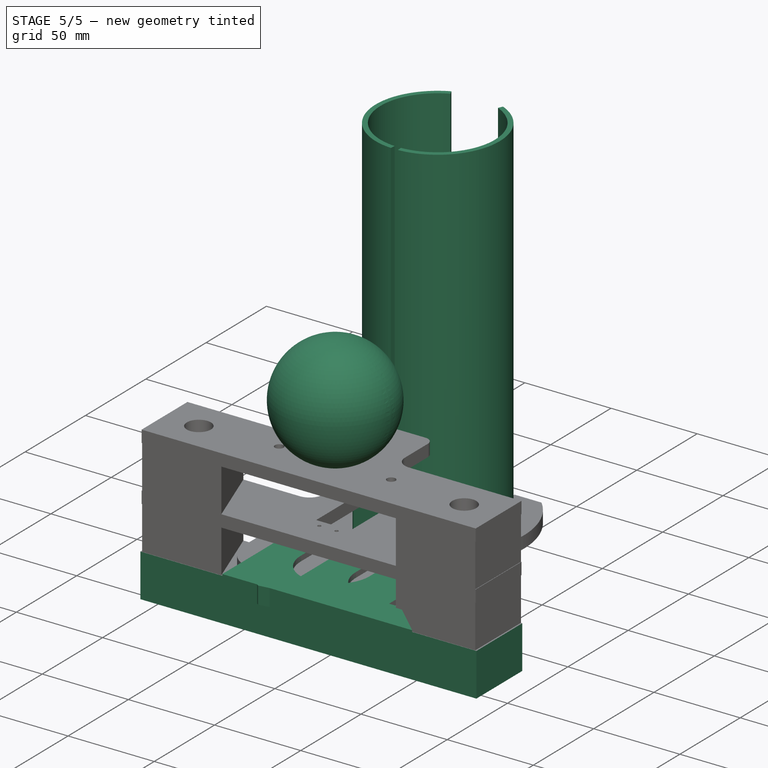
[diagram: stage 5 of 5 — iso view after this stage's code; geometry added in this stage tinted green]
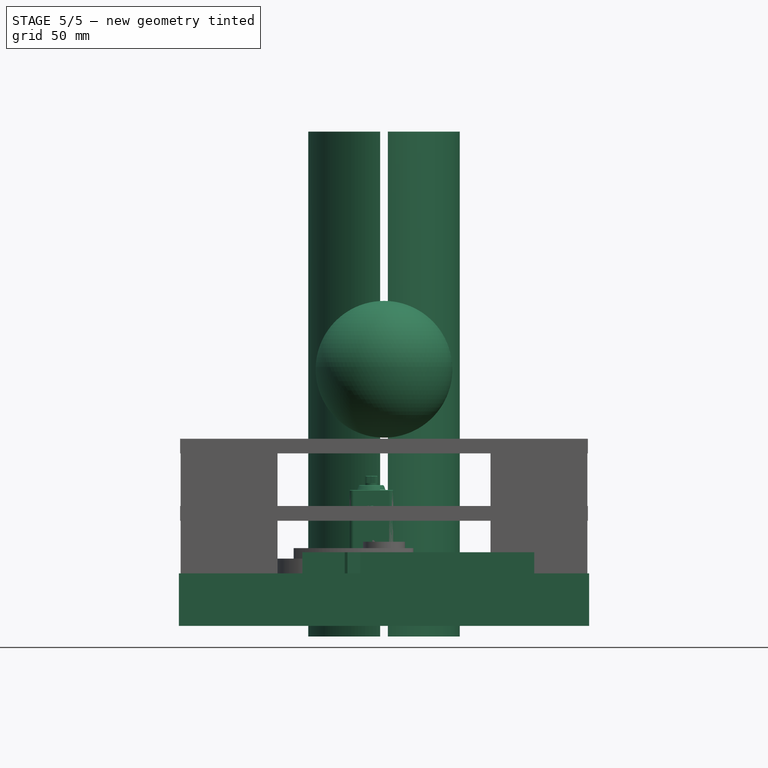
[diagram: stage 5 of 5 — front view after this stage's code; geometry added in this stage tinted green]
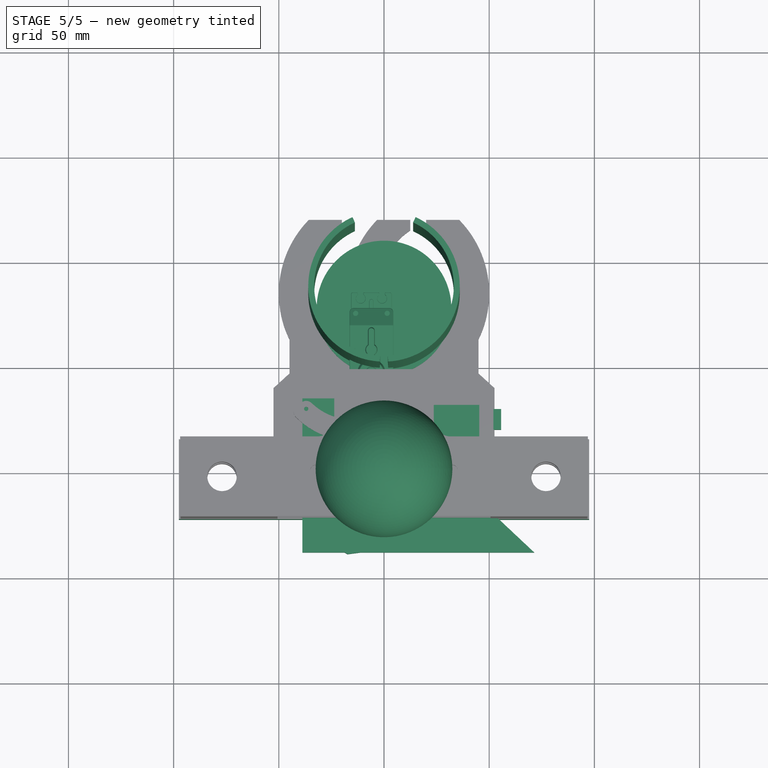
[diagram: stage 5 of 5 — top view after this stage's code; geometry added in this stage tinted green]
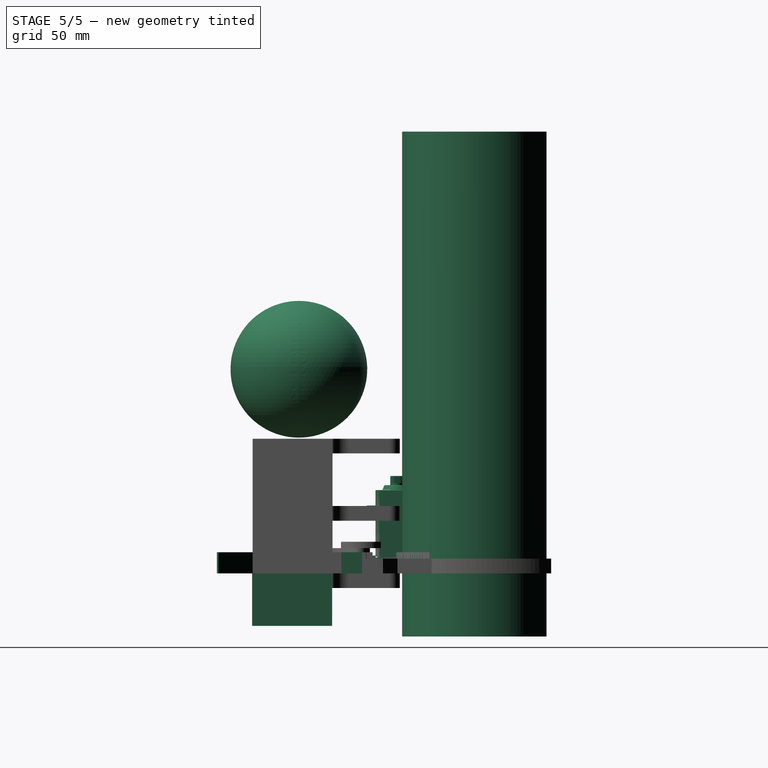
[diagram: stage 5 of 5 — right view after this stage's code; geometry added in this stage tinted green]
FEATURE [Part::Cylinder] Cylinder  label="Cylindre"
  Angle = 360
  Height = 10
  Placement = pos=(0,78,0) rot=(0,0,1;0rad)
  Radius = 32
FEATURE [Part::Compound] Compound  label="Servo-SM-S4303R"
  Placement = pos=(-6,57,0) rot=(0,0,-1;1.5708rad)
FEATURE [Part::FeaturePython] Clone004  label="Clone of gear"  # Draft clone (typed FeaturePython)
  Objects = -> [Cut]
  Scale = (1,1,1)
FEATURE [Part::FeaturePython] Clone005  label="Clone of gear001"  # Draft clone (typed FeaturePython)
  Objects = -> [Cut]
  Scale = (1,1,1)
FEATURE [Part::FeaturePython] Clone006  label="Clone of gearcutter"  # Draft clone (typed FeaturePython)
  Objects = -> [Pad002]
  Scale = (1,1,1)
FEATURE [Part::FeaturePython] Clone007  label="Clone of gearcutter001"  # Draft clone (typed FeaturePython)
  Objects = -> [Pad002]
  Placement = pos=(32,0,0) rot=(0,0,1;0rad)
  Scale = (1,1,1)
FEATURE [Sketcher::SketchObject] Sketch003
  sketch-geometry (8):
    g0: LineSegment StartX=-97.5034 StartY=15.787 StartZ=0 EndX=97.5034 EndY=15.787 EndZ=0
    g1: LineSegment StartX=97.5034 StartY=15.787 StartZ=0 EndX=97.5034 EndY=-22.213 EndZ=0
    g2: LineSegment StartX=97.5034 StartY=-22.213 StartZ=0 EndX=-97.5034 EndY=-22.213 EndZ=0
    g3: LineSegment StartX=-97.5034 StartY=-22.213 StartZ=0 EndX=-97.5034 EndY=15.787 EndZ=0
    g4: Circle CenterX=-76.32 CenterY=-2.33682 CenterZ=0 NormalX=0 NormalY=0 NormalZ=1 Radius=11
    g5: Circle CenterX=76.32 CenterY=-2.33682 CenterZ=0 NormalX=0 NormalY=0 NormalZ=1 Radius=11
    g6: Circle CenterX=-32 CenterY=0 CenterZ=0 NormalX=0 NormalY=0 NormalZ=1 Radius=2.5
    g7: Circle CenterX=32 CenterY=0 CenterZ=0 NormalX=0 NormalY=0 NormalZ=1 Radius=2.5
  constraints (18):
    c: Coincident(g0,g1)
    c: Coincident(g1,g2)
    c: Coincident(g2,g3)
    c: Coincident(g3,g0)
    c: Horizontal(g0)
    c: Horizontal(g2)
    c: Vertical(g1)
    c: Vertical(g3)
    c: Radius(g4) = 11
    c: Symmetric(g2,g1,g-2)
    c: Symmetric(g4,g5,g-2)
    c: Equal(g4,g5)
    c: PointOnObject(g6,g-1)
    c: PointOnObject(g7,g-1)
    c: Symmetric(g6,g7,g-2)
    c: Equal(g6,g7)
    c: Radius(g6) = 2.5
    c: DistanceY(g3) = 38
FEATURE [PartDesign::Pad] Pad003
  Length = 25
  Length2 = 100
  Reversed = true
  Sketch = -> Sketch003
  Type = 0
FEATURE [App::DocumentObjectGroup] Groupe  label="base"
  Group = -> [Pad003]
FEATURE [Sketcher::SketchObject] Sketch004  label="tube001"
  sketch-geometry (8):
    g0: ArcOfCircle CenterX=0 CenterY=85 CenterZ=0 NormalX=0 NormalY=0 NormalZ=1 Radius=36 StartAngle=2.00057 EndAngle=4.6568
    g1: ArcOfCircle CenterX=0 CenterY=85 CenterZ=0 NormalX=0 NormalY=0 NormalZ=1 Radius=33.2 StartAngle=2.00057 EndAngle=4.6568
    g2: LineSegment StartX=-15 StartY=117.726 StartZ=0 EndX=-13.8333 EndY=115.181 EndZ=0
    g3: LineSegment StartX=-2 StartY=49.0556 StartZ=0 EndX=-1.84444 EndY=51.8513 EndZ=0
    g4: ArcOfCircle CenterX=0 CenterY=85 CenterZ=0 NormalX=0 NormalY=0 NormalZ=1 Radius=33.2 StartAngle=4.76797 EndAngle=7.42421
    g5: ArcOfCircle CenterX=0 CenterY=85 CenterZ=0 NormalX=0 NormalY=0 NormalZ=1 Radius=36 StartAngle=4.76797 EndAngle=7.42421
    g6: LineSegment StartX=13.8333 StartY=115.181 StartZ=0 EndX=15 EndY=117.726 EndZ=0
    g7: LineSegment StartX=1.84444 StartY=51.8513 StartZ=0 EndX=2 EndY=49.0556 EndZ=0
  constraints (24):
    c: PointOnObject(g0,g-2)
    c: DistanceX(g-1,g0) = -15
    c: Radius(g0) = 36
    c: DistanceY(g-1,g0) = 85
    c: Coincident(g1,g0)
    c: Radius(g1) = 33.2
    c: Coincident(g2,g0)
    c: Coincident(g2,g1)
    c: Coincident(g3,g0)
    c: Coincident(g3,g1)
    c: Perpendicular(g0,g2)
    c: Perpendicular(g0,g3)
    c: Coincident(g4,g0)
    c: Coincident(g5,g0)
    c: Coincident(g6,g4)
    c: Coincident(g6,g5)
    c: Coincident(g7,g4)
    c: Coincident(g7,g5)
    c: Symmetric(g5,g0,g-2)
    c: Symmetric(g0,g5,g-2)
    c: Perpendicular(g5,g7)
    c: Perpendicular(g5,g6)
    c: Equal(g1,g4)
    c: DistanceX(g-1,g0) = -2
FEATURE [PartDesign::Pad] Pad004  label="tube3d"
  Length = 240
  Length2 = 100
  Sketch = -> Sketch004
  Type = 0
FEATURE [Part::FeaturePython] Clone010  label="clone tube3d"  # Draft clone (typed FeaturePython)
  Objects = -> [Pad004]
  Placement = pos=(0,0,-30) rot=(0,0,1;0rad)
  Scale = (1,1,1)
FEATURE [App::DocumentObjectGroup] Groupe001  label="tube"
  Group = -> [Pad004,Clone010]
FEATURE [Sketcher::SketchObject] Sketch005
  Placement = pos=(0,0,0) rot=(1,0,0;1.5708rad)
  sketch-geometry (6):
    g0: LineSegment StartX=0 StartY=0 StartZ=0 EndX=30 EndY=0 EndZ=0
    g1: LineSegment StartX=30 StartY=0 StartZ=0 EndX=30 EndY=70 EndZ=0
    g2: LineSegment StartX=30 StartY=70 StartZ=0 EndX=17.5 EndY=70 EndZ=0
    g3: LineSegment StartX=17.5 StartY=70 StartZ=0 EndX=17.5 EndY=62 EndZ=0
    g4: LineSegment StartX=17.5 StartY=62 StartZ=0 EndX=0 EndY=53.9076 EndZ=0
    g5: LineSegment StartX=0 StartY=53.9076 StartZ=0 EndX=0 EndY=0 EndZ=0
  constraints (16):
    c: Coincident(g-1,g0)
    c: Horizontal(g0)
    c: Coincident(g0,g1)
    c: Vertical(g1)
    c: Coincident(g1,g2)
    c: Horizontal(g2)
    c: Coincident(g2,g3)
    c: Vertical(g3)
    c: Coincident(g3,g4)
    c: Coincident(g4,g5)
    c: Coincident(g5,g0)
    c: Vertical(g5)
    c: DistanceY(g3) = -8
    c: DistanceY(g1) = 70
    c: DistanceX(g0) = 30
    c: DistanceX(g-1,g2) = 17.5
FEATURE [Part::Revolution] Revolve  label="plot"
  Angle = 360
  Axis = (0,0,1)
  Base = (0,0,0)
  Solid = false
  Source = -> Sketch005
FEATURE [Part::Sphere] Sphere  label="tennis"
  Angle1 = -90
  Angle2 = 90
  Angle3 = 360
  Placement = pos=(0,0,97) rot=(0,0,1;0rad)
  Radius = 32.5
FEATURE [Part::FeaturePython] Clone011  label="Clone of gearcutter_d"  # Draft clone (typed FeaturePython)
  Objects = -> [Pad005]
  Scale = (1,1,1)
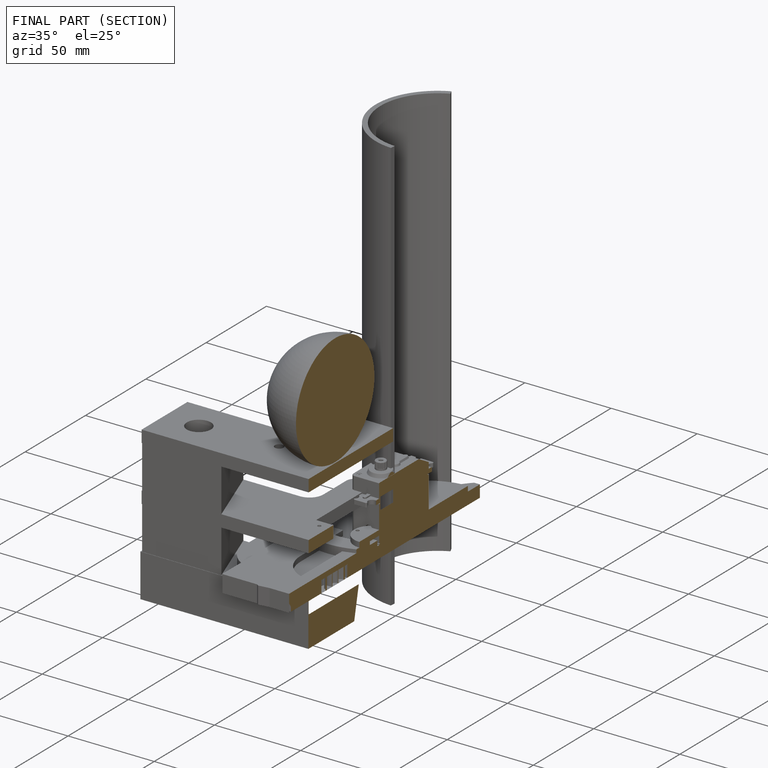
[diagram: finished part — half-section view (interior)]
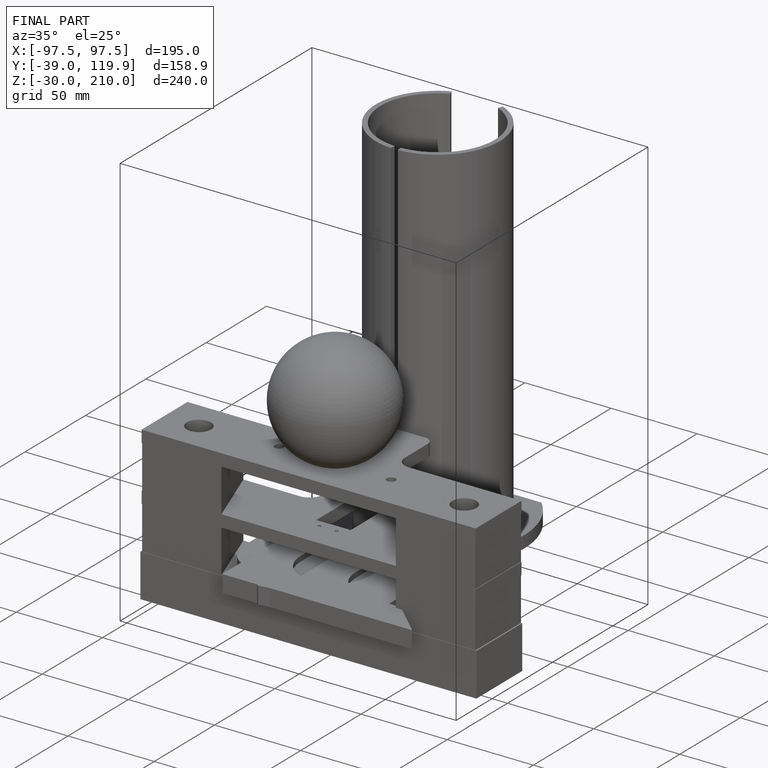
[diagram: finished part — iso view with bounding-box wireframe]
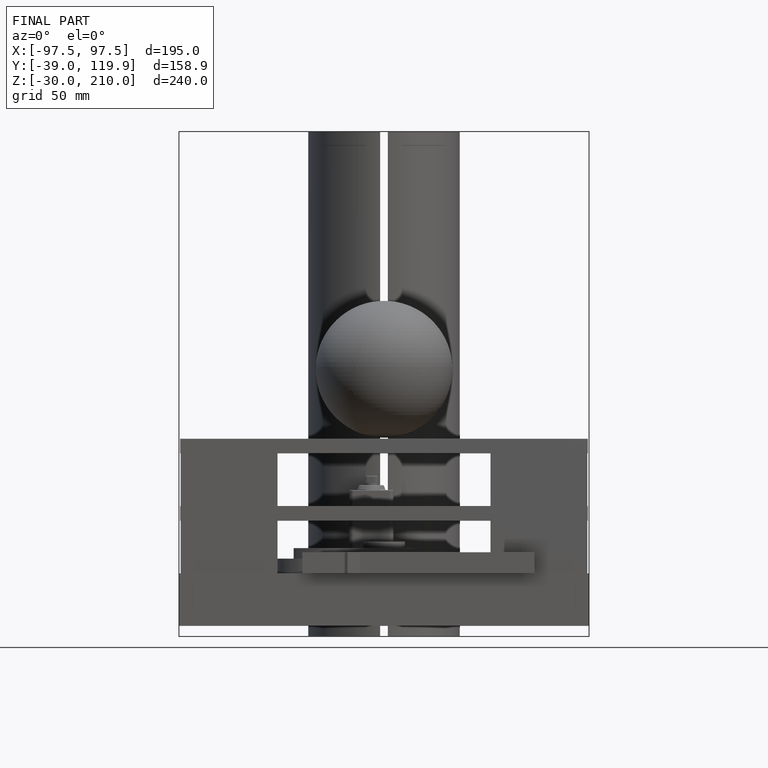
[diagram: finished part — front view with bounding-box wireframe]
